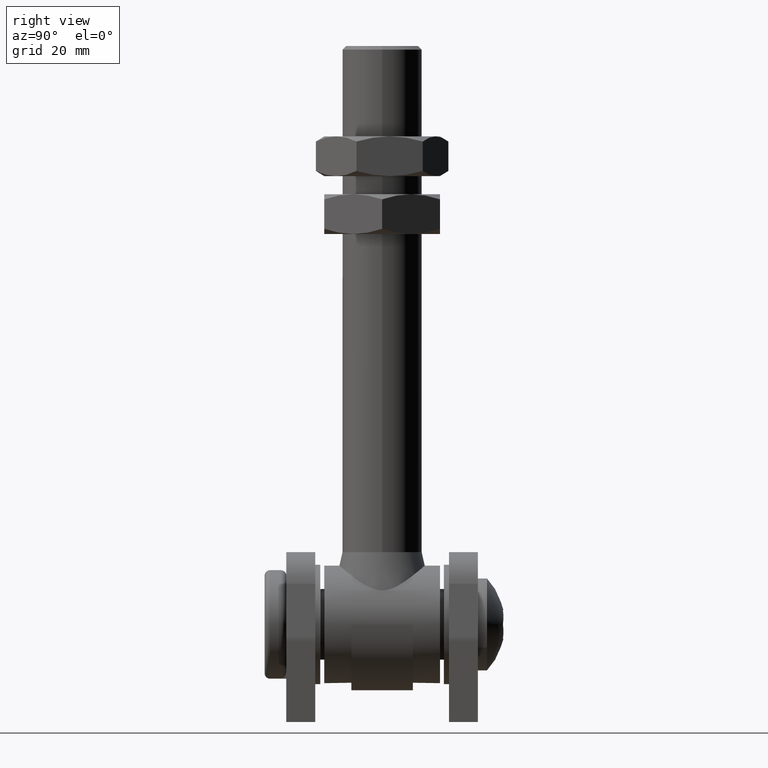
[diagram: clean part render]
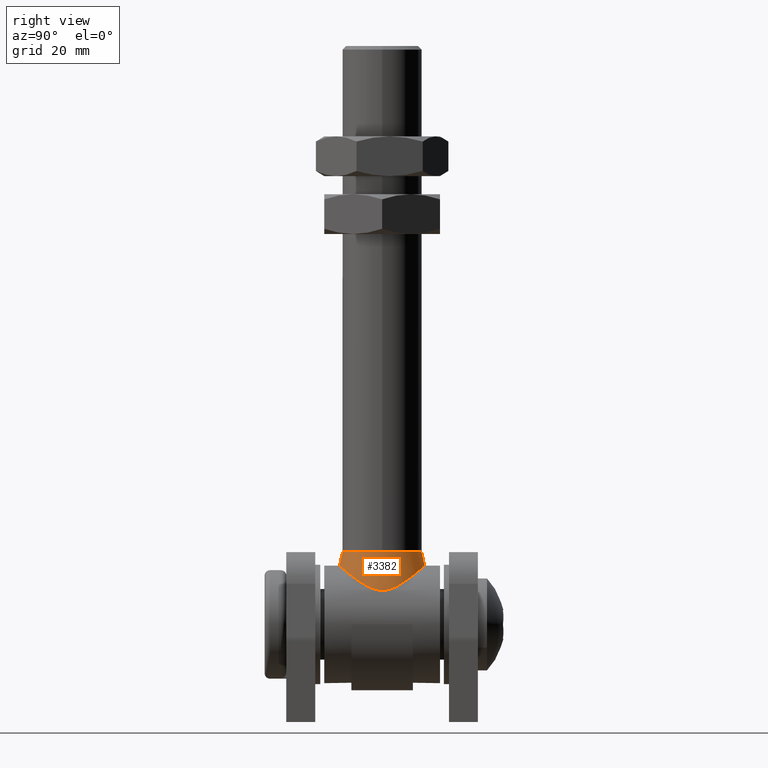
[diagram: same view with one face highlighted and labeled with its STEP entity id]
A machine part, right view. The second image highlights one B-rep face of the part: STEP entity #3382.
In plain terms, the highlighted conical surface has half-angle 12 deg.
Its self-contained STEP definition (entity closure, byte-faithful):
#127 = CARTESIAN_POINT ( 'NONE',  ( -1.798960193837464194, -11.68750241543486368, 16.15598700476085270 ) ) ;
#174 = CARTESIAN_POINT ( 'NONE',  ( -7.309560657901231551, -9.752095615853132671, 14.53202387594488165 ) ) ;
#290 = CARTESIAN_POINT ( 'NONE',  ( 13.15543588560367461, -1.356621785006910885, 9.539427695208436475 ) ) ;
#339 = CARTESIAN_POINT ( 'NONE',  ( 9.134840149791275010, -8.407680876021197847, 13.45927756957555310 ) ) ;
#392 = CARTESIAN_POINT ( 'NONE',  ( -2.529180336439002641, 11.57265188455361837, 16.05768933757376260 ) ) ;
#452 = CARTESIAN_POINT ( 'NONE',  ( -12.04091792426507723, -4.729937042133360414, 10.91589903270185502 ) ) ;
#505 = CARTESIAN_POINT ( 'NONE',  ( -0.8012664228764724283, 11.80118082680310820, 16.25342316784666963 ) ) ;
#551 = CARTESIAN_POINT ( 'NONE',  ( 12.05735939210362062, 4.743615226319330525, 10.90519555412368291 ) ) ;
#602 = CARTESIAN_POINT ( 'NONE',  ( 2.669008166108710611, 11.54619197212852910, 16.03511418571201474 ) ) ;
#950 = CARTESIAN_POINT ( 'NONE',  ( 0.000000000000000000, 0.000000000000000000, 19.99999999999998934 ) ) ;
#1011 = FACE_BOUND ( 'NONE', #12388, .T. ) ;
#1140 = VERTEX_POINT ( 'NONE', #7849 ) ;
#1281 = CARTESIAN_POINT ( 'NONE',  ( 3.381375095437921807, -11.40748681600142334, 15.91624897966333663 ) ) ;
#1337 = CARTESIAN_POINT ( 'NONE',  ( -5.108664111043664136, -10.85421687315750106, 15.44722441758074538 ) ) ;
#1388 = CARTESIAN_POINT ( 'NONE',  ( 12.92136462510031514, 2.507902633668372516, 9.855981269963034919 ) ) ;
#1435 = CARTESIAN_POINT ( 'NONE',  ( 9.700564900370869381, -7.882952726391064147, 13.05375292990495595 ) ) ;
#1547 = CARTESIAN_POINT ( 'NONE',  ( -3.783850688085804492, 11.28064739478724121, 15.80882266176328343 ) ) ;
#1579 = DIRECTION ( 'NONE',  ( 0.000000000000000000, 0.000000000000000000, -1.000000000000000000 ) ) ;
#1596 = CARTESIAN_POINT ( 'NONE',  ( -10.29550131700104210, -7.260991678262930904, 12.59118954215636776 ) ) ;
#1646 = CARTESIAN_POINT ( 'NONE',  ( -13.02485408040466375, -2.096153218059106926, 9.717617147298581060 ) ) ;
#1699 = CARTESIAN_POINT ( 'NONE',  ( -13.23527418363033625, -0.6011235339356035823, 9.428163071743039580 ) ) ;
#1755 = CARTESIAN_POINT ( 'NONE',  ( -9.688033162552450506, 7.871968309907720673, 13.05091040668124336 ) ) ;
#2458 = CARTESIAN_POINT ( 'NONE',  ( 13.26242939808282451, -0.05458696805761981130, 9.389965905142373614 ) ) ;
#2614 = CARTESIAN_POINT ( 'NONE',  ( -8.599291824221676706, -8.851678958194415969, 13.80802574825394835 ) ) ;
#2669 = CARTESIAN_POINT ( 'NONE',  ( 12.77760443088201292, -2.990242066398317800, 10.04214511204816951 ) ) ;
#2722 = CARTESIAN_POINT ( 'NONE',  ( -9.118894890732523351, 8.398632035164881771, 13.45473912692880880 ) ) ;
#2774 = CARTESIAN_POINT ( 'NONE',  ( -12.77675326996013005, 2.992678461656001154, 10.04321057171812370 ) ) ;
#2823 = CARTESIAN_POINT ( 'NONE',  ( -2.096304064940141654, 11.64552051883694261, 16.12005993803051851 ) ) ;
#2878 = CARTESIAN_POINT ( 'NONE',  ( -10.79000091584664744, -6.675734318252257715, 12.16594748011440252 ) ) ;
#2925 = CARTESIAN_POINT ( 'NONE',  ( -12.89741910299647110, 2.596967690738743340, 9.886592154250713804 ) ) ;
#3382 = ADVANCED_FACE ( 'NONE', ( #1011, #7677 ), #7843, .T. ) ;
#3618 = CARTESIAN_POINT ( 'NONE',  ( 13.24928161481023992, -0.4908145567168277212, 9.408745861546647049 ) ) ;
#3730 = EDGE_LOOP ( 'NONE', ( #12403 ) ) ;
#3752 = CARTESIAN_POINT ( 'NONE',  ( 0.000000000000000000, 0.000000000000000000, 19.99999999999998934 ) ) ;
#3773 = CARTESIAN_POINT ( 'NONE',  ( 12.01046059374215957, -4.826208043793677405, 10.96119961393551812 ) ) ;
#3825 = CARTESIAN_POINT ( 'NONE',  ( -13.24942387232727015, 0.4908337052216893981, 9.408551593849425743 ) ) ;
#3881 = CARTESIAN_POINT ( 'NONE',  ( -12.92230216663540610, -2.504693323754063616, 9.854766446633608012 ) ) ;
#3937 = CARTESIAN_POINT ( 'NONE',  ( -9.745212813620385717, -7.807645316541050207, 13.00358941150240710 ) ) ;
#3983 = CARTESIAN_POINT ( 'NONE',  ( -12.01074758456222114, 4.826326187650760602, 10.96109365637966881 ) ) ;
#4043 = CARTESIAN_POINT ( 'NONE',  ( 0.06690039209070375303, 11.82434730268103174, 16.27337834048038800 ) ) ;
#4507 = CARTESIAN_POINT ( 'NONE',  ( 11.00000000000000000, 0.000000000000000000, 19.99999999999998934 ) ) ;
#4850 = CARTESIAN_POINT ( 'NONE',  ( 13.23503794032162162, 0.6052843852026762450, 9.428495056368435101 ) ) ;
#4897 = CARTESIAN_POINT ( 'NONE',  ( 8.200277218381048172, -9.133246400923923147, 14.03394787135752786 ) ) ;
#4949 = CARTESIAN_POINT ( 'NONE',  ( 4.990410777846324031, -10.88022726884994995, 15.47013625604771470 ) ) ;
#5006 = CARTESIAN_POINT ( 'NONE',  ( 10.79318927755923418, 6.671228124968965112, 12.16291752696742634 ) ) ;
#5058 = CARTESIAN_POINT ( 'NONE',  ( -13.16239675003409637, 1.362505181731882953, 9.529920662703032619 ) ) ;
#5154 = CARTESIAN_POINT ( 'NONE',  ( -8.819028127366662417, 8.653083746790365183, 13.65361742702285319 ) ) ;
#5210 = CARTESIAN_POINT ( 'NONE',  ( 3.088295833947197977, 11.45755232656469680, 15.95941155189706251 ) ) ;
#5929 = CARTESIAN_POINT ( 'NONE',  ( -9.745212813620385717, -7.807645316541050207, 13.00358941150240710 ) ) ;
#6028 = CARTESIAN_POINT ( 'NONE',  ( -6.615648529512348830, -10.15512476409015719, 14.86433267054157525 ) ) ;
#6130 = CARTESIAN_POINT ( 'NONE',  ( 1.814721274582135946, 11.68531098155792947, 16.15411025823324209 ) ) ;
#6186 = CARTESIAN_POINT ( 'NONE',  ( -6.130759892424225477, 10.38323993257794697, 15.05427914887039620 ) ) ;
#6291 = CARTESIAN_POINT ( 'NONE',  ( -13.13853049623592284, -1.467420201803873336, 9.562720225375464622 ) ) ;
#6342 = CARTESIAN_POINT ( 'NONE',  ( 5.499612962229532442, 10.67323455292572909, 15.29630586732262287 ) ) ;
#6724 = DIRECTION ( 'NONE',  ( 1.000000000000000000, 0.000000000000000000, 0.000000000000000000 ) ) ;
#7026 = CARTESIAN_POINT ( 'NONE',  ( -3.083146854549934979, -11.45872980190496548, 15.96041560090066724 ) ) ;
#7084 = CARTESIAN_POINT ( 'NONE',  ( 4.592377325393997012, -11.02603538696871333, 15.59317527897629851 ) ) ;
#7139 = CARTESIAN_POINT ( 'NONE',  ( 13.02453789953392871, 2.097529632603082117, 9.718041922771837093 ) ) ;
#7187 = CARTESIAN_POINT ( 'NONE',  ( -4.319778813982909860, -11.13853957847873311, 15.68804174264725226 ) ) ;
#7238 = CARTESIAN_POINT ( 'NONE',  ( 11.19823214139266732, -6.133737287419441131, 11.78976919018576908 ) ) ;
#7291 = CARTESIAN_POINT ( 'NONE',  ( -3.371998318667727812, 11.39021099591679764, 15.90206802196375158 ) ) ;
#7342 = CARTESIAN_POINT ( 'NONE',  ( -12.67642516016386622, -3.288470978280025658, 10.16909829642187013 ) ) ;
#7389 = CARTESIAN_POINT ( 'NONE',  ( 5.111001492336302299, 10.83349793549218809, 15.43089370194379306 ) ) ;
#7443 = CARTESIAN_POINT ( 'NONE',  ( 6.619258496328980890, 10.15267483007929350, 14.86232756478015737 ) ) ;
#7495 = CARTESIAN_POINT ( 'NONE',  ( 9.488663795255463995, 8.063347083624309519, 13.19633647389713893 ) ) ;
#7677 = FACE_OUTER_BOUND ( 'NONE', #3730, .T. ) ;
#7843 = CONICAL_SURFACE ( 'NONE', #12895, 11.00000000000000000, 0.2094395102393200037 ) ;
#7849 = CARTESIAN_POINT ( 'NONE',  ( -9.745212813620385717, -7.807645316541047542, 13.00358941150240533 ) ) ;
#8056 = CIRCLE ( 'NONE', #14950, 11.00000000000000000 ) ;
#8176 = CARTESIAN_POINT ( 'NONE',  ( 0.8012117928346146334, -11.80169351835921709, 16.25386070617227929 ) ) ;
#8279 = CARTESIAN_POINT ( 'NONE',  ( 5.761277254358441624, -10.55787982657451174, 15.19990131253288013 ) ) ;
#8362 = ORIENTED_EDGE ( 'NONE', *, *, #10194, .F. ) ;
#8394 = CARTESIAN_POINT ( 'NONE',  ( 12.53431037358815914, 3.661567133934919394, 10.34474455240763291 ) ) ;
#8448 = CARTESIAN_POINT ( 'NONE',  ( -7.213650500143261368, 9.812487106944191240, 14.58238309277564682 ) ) ;
#8497 = CARTESIAN_POINT ( 'NONE',  ( -11.45112565320619602, -5.731153606927328781, 11.53374161916683960 ) ) ;
#8548 = CARTESIAN_POINT ( 'NONE',  ( -11.19283471639237604, 6.141842307461755190, 11.79508722712617796 ) ) ;
#8604 = CARTESIAN_POINT ( 'NONE',  ( -5.754681011794906986, 10.56087059688239194, 15.20239939252964056 ) ) ;
#8655 = CARTESIAN_POINT ( 'NONE',  ( 1.376512237427744534, 11.73589851965861541, 16.19749729522839843 ) ) ;
#9366 = CARTESIAN_POINT ( 'NONE',  ( 10.73100911333723850, -6.748099001649411122, 12.22075563747113947 ) ) ;
#9417 = CARTESIAN_POINT ( 'NONE',  ( 7.201171542111676871, -9.798705979363546703, 14.57222848477283250 ) ) ;
#9472 = CARTESIAN_POINT ( 'NONE',  ( 12.67635164074786047, 3.288483695968004383, 10.16917595721329448 ) ) ;
#9576 = CARTESIAN_POINT ( 'NONE',  ( 13.13828607732222764, 1.468957247054306414, 9.563056285922812094 ) ) ;
#9627 = CARTESIAN_POINT ( 'NONE',  ( -12.21642592582698583, -4.382735494629787176, 10.71827966901574136 ) ) ;
#9681 = CARTESIAN_POINT ( 'NONE',  ( 10.30395014533368858, 7.250829624750120495, 12.58384914123169551 ) ) ;
#9734 = CARTESIAN_POINT ( 'NONE',  ( 3.912031564906826908, 11.24395645095708929, 15.77771837991710058 ) ) ;
#9769 = DIRECTION ( 'NONE',  ( -1.000000000000000000, 0.000000000000000000, 0.000000000000000000 ) ) ;
#9784 = CARTESIAN_POINT ( 'NONE',  ( -9.958533060776424861, 7.598844931146305548, 12.84521436607236389 ) ) ;
#9834 = CARTESIAN_POINT ( 'NONE',  ( -10.73024497904170715, 6.748942707760284598, 12.22137447349789596 ) ) ;
#10151 = EDGE_CURVE ( 'NONE', #1140, #1140, #11834, .T. ) ;
#10194 = EDGE_CURVE ( 'NONE', #13062, #13062, #8056, .T. ) ;
#10511 = CARTESIAN_POINT ( 'NONE',  ( 2.543965751564473354, -11.59120192405824845, 16.07352377195165971 ) ) ;
#10567 = CARTESIAN_POINT ( 'NONE',  ( -2.661748116873385417, -11.54773960506109454, 16.03643572740945444 ) ) ;
#10617 = CARTESIAN_POINT ( 'NONE',  ( 6.853348753510680957, -10.00232709666773800, 14.73934583666324727 ) ) ;
#10664 = CARTESIAN_POINT ( 'NONE',  ( 7.874032633807551029, -9.364665739814139300, 14.21992702769875194 ) ) ;
#10718 = CARTESIAN_POINT ( 'NONE',  ( 13.21796527630281837, 0.8254821368793818781, 9.452492236481425891 ) ) ;
#10773 = CARTESIAN_POINT ( 'NONE',  ( 8.287906169263219880, 9.068689193914488911, 13.98255663919484704 ) ) ;
#10820 = CARTESIAN_POINT ( 'NONE',  ( -4.983731558330069866, 10.88278376052112506, 15.47228879616728392 ) ) ;
#10877 = CARTESIAN_POINT ( 'NONE',  ( 4.316477136470724396, 11.11899554164994797, 15.67172108690292909 ) ) ;
#10930 = CARTESIAN_POINT ( 'NONE',  ( -13.21838495815775616, -0.8210573256863727964, 9.451905767141523640 ) ) ;
#11738 = CARTESIAN_POINT ( 'NONE',  ( 13.08390456468131902, -1.779771177832876639, 9.637303327936193043 ) ) ;
#11793 = CARTESIAN_POINT ( 'NONE',  ( -1.366586340164648750, -11.73676555208613514, 16.19824092356089551 ) ) ;
#11834 = B_SPLINE_CURVE_WITH_KNOTS ( 'NONE', 3,
 ( #5929, #12793, #2614, #174, #6028, #1337, #7187, #7026, #10567, #127, #11793, #13976, #8176, #10511, #1281, #7084, #4949, #8279, #14136, #10617, #9417, #10664, #4897, #339, #1435, #9366, #7238, #3773, #11849, #2669, #12955, #14078, #11738, #290, #14027, #3618, #2458, #4850, #10718, #12899, #9576, #7139, #1388, #9472, #8394, #551, #13250, #5006, #9681, #7495, #14394, #13052, #10773, #14194, #7443, #6342, #7389, #10877, #9734, #5210, #602, #6130, #8655, #4043, #505, #2823, #392, #7291, #1547, #13105, #10820, #8604, #6186, #8448, #14241, #5154, #2722, #1755, #9784, #9834, #8548, #3983, #11946, #2774, #2925, #12050, #5058, #3825, #11896, #1699, #10930, #13198, #6291, #1646, #3881, #7342, #12100, #9627, #452, #14348, #8497, #2878, #1596, #3937 ),
 .UNSPECIFIED., .T., .F.,
 ( 4, 2, 2, 2, 2, 2, 2, 2, 2, 2, 2, 2, 2, 2, 2, 2, 2, 2, 2, 2, 2, 2, 2, 2, 2, 2, 2, 2, 2, 2, 2, 2, 2, 2, 2, 2, 2, 2, 2, 2, 2, 2, 2, 2, 2, 2, 2, 2, 2, 2, 2, 4 ),
 ( 0.000000000000000000, 0.002597301745885882349, 0.005194603491771764697, 0.007791905237657647913, 0.009090556110600587353, 0.01038920698354352939, 0.01298650872942941348, 0.01558381047531529930, 0.01688246134825824307, 0.01818111222120118164, 0.01947976309414412369, 0.02077841396708706573, 0.02337571571297295328, 0.02597301745885883736, 0.02857031920474472492, 0.02986897007768766696, 0.03051829551415913624, 0.03116762095063060900, 0.03246627182357355451, 0.03311559726004502380, 0.03376492269651650002, 0.03506357356945944553, 0.03636222444240238411, 0.03895952618828827513, 0.04155682793417415921, 0.04285547880711709778, 0.04415412968006004329, 0.04675143142594592738, 0.04805008229888886595, 0.04934873317183180452, 0.05064738404477475003, 0.05194603491771768167, 0.05454333666360356575, 0.05584198753654650432, 0.05714063840948944983, 0.05843928928243238841, 0.05973794015537533392, 0.06233524190126121800, 0.06363389277420415657, 0.06493254364714709514, 0.06752984539303298617, 0.07012714713891886331, 0.07142579801186181576, 0.07272444888480474046, 0.07402309975774767903, 0.07467242519421915525, 0.07532175063069063148, 0.07662040150363357005, 0.07791905237657650862, 0.07921770324951944720, 0.08051635412246239965, 0.08311365586834827679 ),
 .UNSPECIFIED. ) ;
#11849 = CARTESIAN_POINT ( 'NONE',  ( 12.35865499004093238, -4.133315429112653483, 10.56047160931984052 ) ) ;
#11896 = CARTESIAN_POINT ( 'NONE',  ( -13.26229387365986234, 0.05441152629413841674, 9.390155893364477535 ) ) ;
#11946 = CARTESIAN_POINT ( 'NONE',  ( -12.35927692432223068, 4.131389954799143283, 10.55967730307829910 ) ) ;
#12050 = CARTESIAN_POINT ( 'NONE',  ( -13.08967821911828366, 1.783807493524466992, 9.630599569225704926 ) ) ;
#12100 = CARTESIAN_POINT ( 'NONE',  ( -12.53414382552303152, -3.661953997029645524, 10.34494176037529378 ) ) ;
#12388 = EDGE_LOOP ( 'NONE', ( #8362 ) ) ;
#12403 = ORIENTED_EDGE ( 'NONE', *, *, #10151, .T. ) ;
#12793 = CARTESIAN_POINT ( 'NONE',  ( -9.194924310239727561, -8.354298954819169509, 13.41598928084844644 ) ) ;
#12895 = AXIS2_PLACEMENT_3D ( 'NONE', #3752, #1579, #9769 ) ;
#12899 = CARTESIAN_POINT ( 'NONE',  ( 13.16960775933696048, 1.256600534825027982, 9.519750363927645509 ) ) ;
#12955 = CARTESIAN_POINT ( 'NONE',  ( 12.89727933436852148, -2.597536808633176708, 9.886777494479346728 ) ) ;
#13052 = CARTESIAN_POINT ( 'NONE',  ( 8.602576130857826797, 8.827504364344434862, 13.79083222953263110 ) ) ;
#13062 = VERTEX_POINT ( 'NONE', #4507 ) ;
#13105 = CARTESIAN_POINT ( 'NONE',  ( -4.589719261258745853, 11.02693669241628527, 15.59393718993500855 ) ) ;
#13198 = CARTESIAN_POINT ( 'NONE',  ( -13.16991731706021795, -1.254513819762081317, 9.519322528140939710 ) ) ;
#13250 = CARTESIAN_POINT ( 'NONE',  ( 11.66884320877709236, 5.420040861133950116, 11.32552849618983615 ) ) ;
#13623 = DIRECTION ( 'NONE',  ( 0.000000000000000000, 0.000000000000000000, 1.000000000000000000 ) ) ;
#13976 = CARTESIAN_POINT ( 'NONE',  ( -0.06773382187300340529, -11.82389335211571790, 16.27298931053433151 ) ) ;
#14027 = CARTESIAN_POINT ( 'NONE',  ( 13.18468513055244884, -1.139977086102726078, 9.498839061017886110 ) ) ;
#14078 = CARTESIAN_POINT ( 'NONE',  ( 13.04164156732905511, -1.986989590698299946, 9.694560644651874171 ) ) ;
#14136 = CARTESIAN_POINT ( 'NONE',  ( 6.133397813256201481, -10.38191144163403301, 15.05317694356751801 ) ) ;
#14194 = CARTESIAN_POINT ( 'NONE',  ( 7.313703032440248109, 9.749951343472018195, 14.53022241084033794 ) ) ;
#14241 = CARTESIAN_POINT ( 'NONE',  ( -7.883269391608749288, 9.378923955857148442, 14.22858627968611067 ) ) ;
#14348 = CARTESIAN_POINT ( 'NONE',  ( -11.65855958343369103, -5.403853622824127179, 11.32336277748601105 ) ) ;
#14394 = CARTESIAN_POINT ( 'NONE',  ( 9.203202261748346658, 8.324501271426118620, 13.39747878519204427 ) ) ;
#14950 = AXIS2_PLACEMENT_3D ( 'NONE', #950, #13623, #6724 ) ;